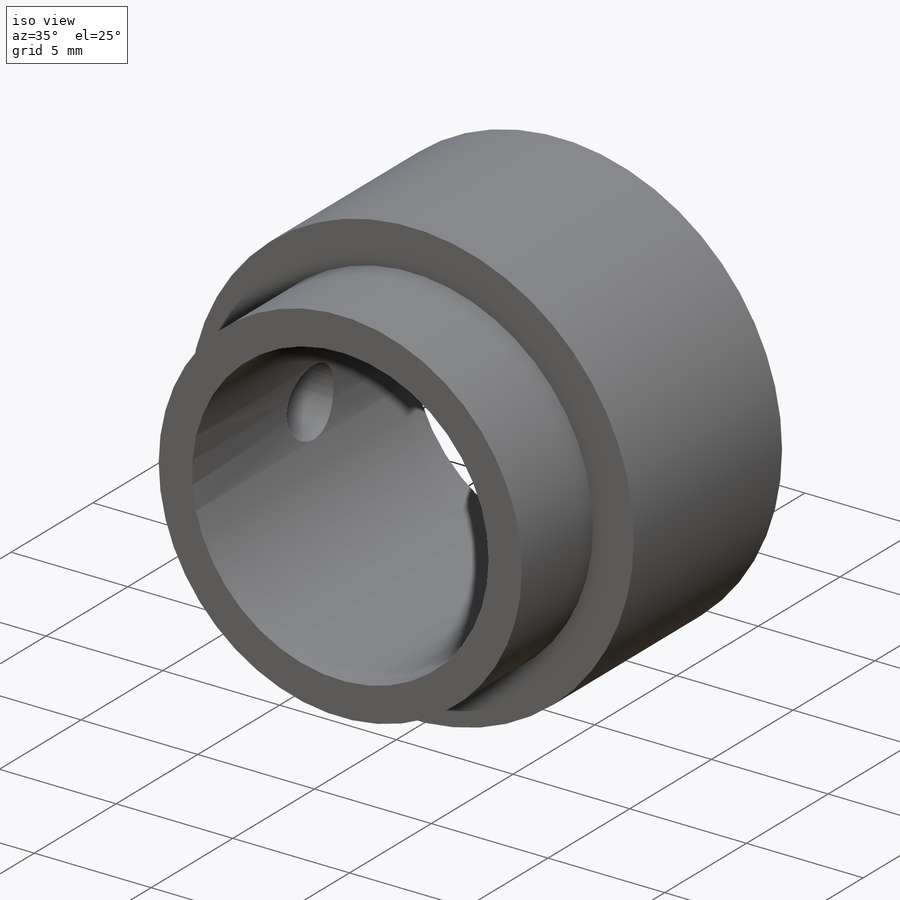
[diagram: iso view]
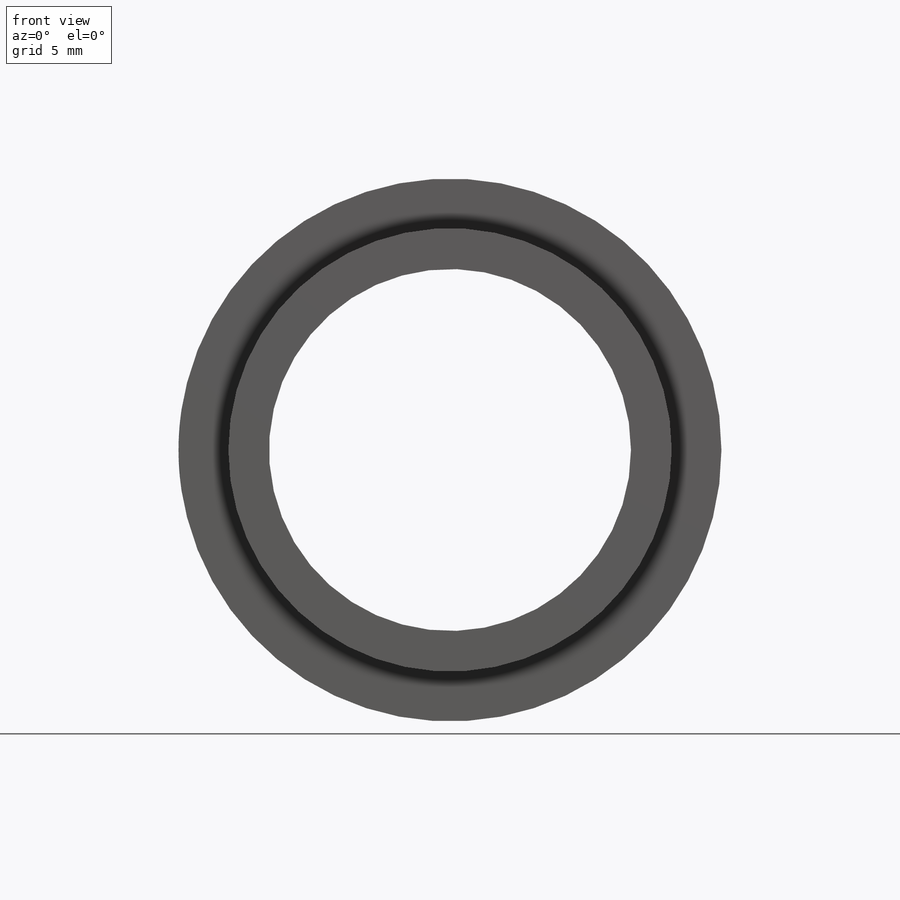
[diagram: front view]
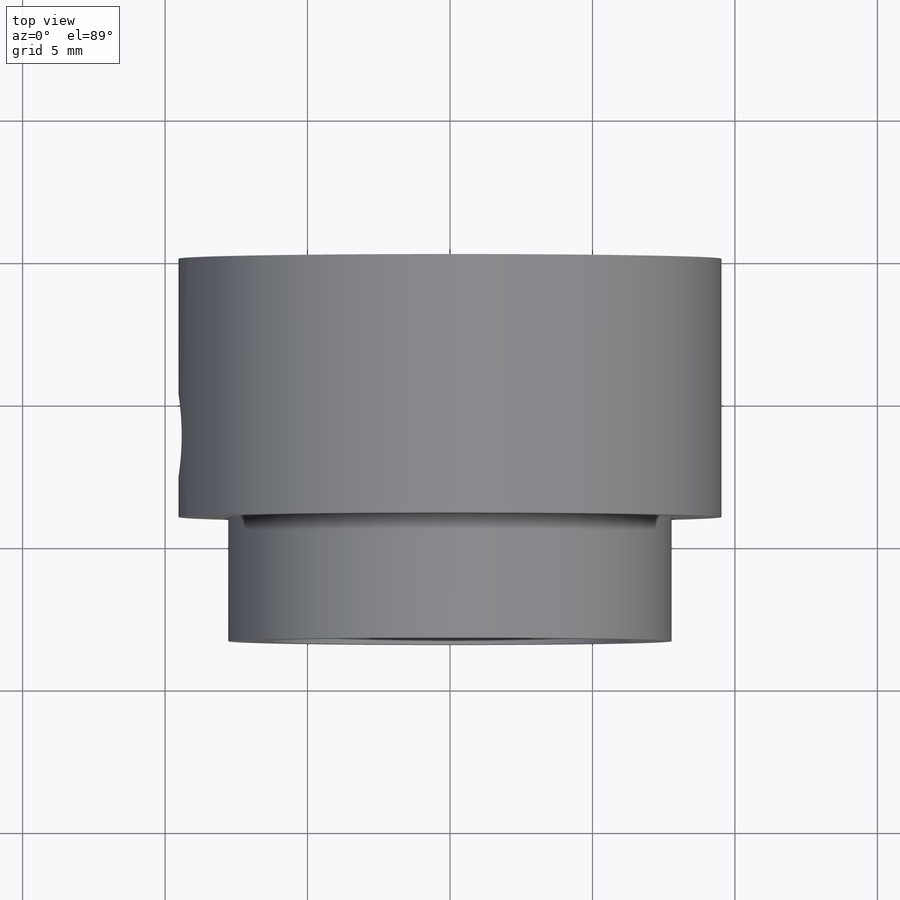
[diagram: top view]
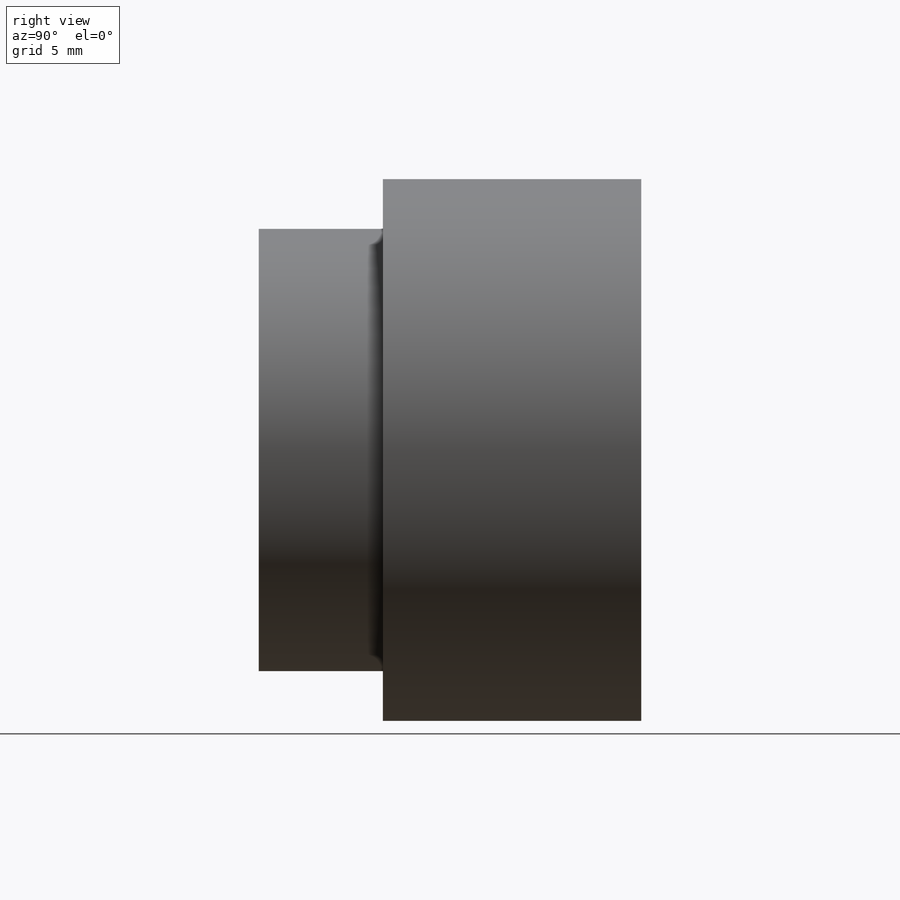
[diagram: right view]
SOLIDWORKS PART (.sldprt)
format: sldprt  version: not decoded by parser v0  size: 248,832 bytes
history: native  units: mm
features: sketch x4, extrude x2, cut_extrude x2, material x1, thread x1 (+16 scaffold rows collapsed)
feature tree (26):
  scaffold x16  (default folders/planes/origin — collapsed)
  material  "Alloy Steel"
  sketch  "Sketch1"  dims[D1=19.05mm D2=12.7mm]
  extrude  "Extrude1"  [1 undecoded]
  thread  "Cosmetic Thread1"  Diameter=18.84426mm  [1 undecoded]
  sketch  "Sketch3"  dims[D1=15.5575mm]
  extrude  "Extrude2"  Depth=13.4239mm
  sketch  "Sketch4"  dims[D1=12.7mm]
  cut_extrude  "Extrude3"  [1 undecoded]
  sketch  "Sketch5"  dims[D1=2.8829mm D2=~6.20395mm]
  cut_extrude  "Extrude4"  [1 undecoded]
decode coverage: 6 of 9 modeling features carry decoded parameters
note: ~ marks probable driven/reference dimensions
note: 4 parameter values undecoded
summary: no parameter record found for 3 features
note: suppression state not decoded; provenance and decode notes live in map.json
